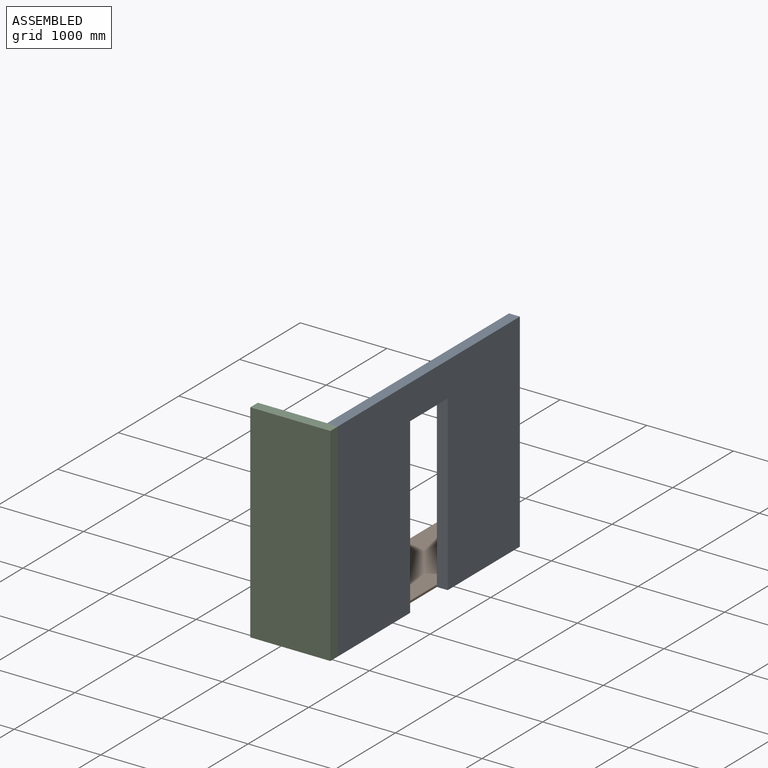
[diagram: assembled view]
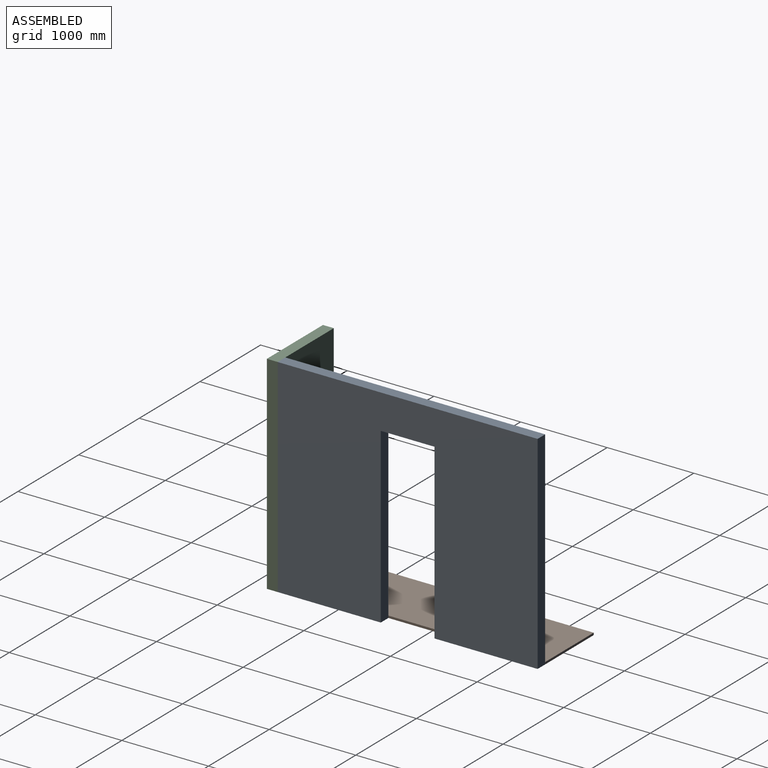
[diagram: assembled view, second angle]
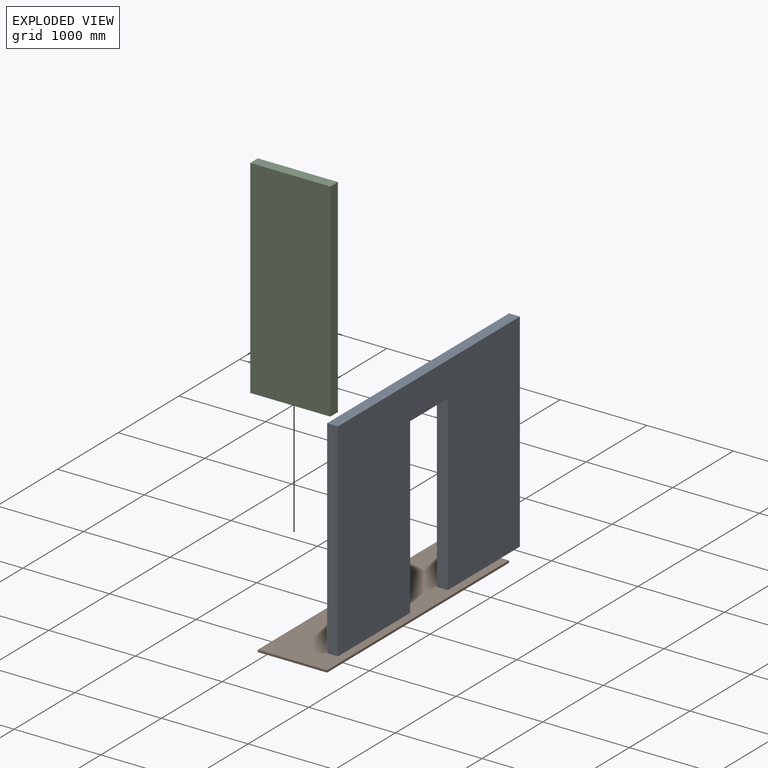
[diagram: exploded view]
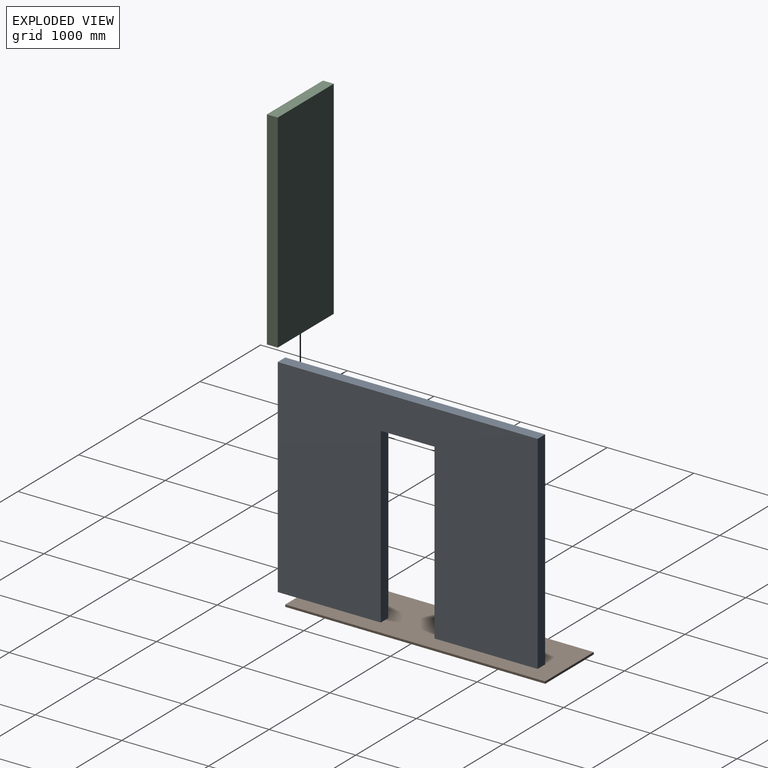
[diagram: exploded view, second angle]
ASSEMBLY  parts=3 mates=2
PART A: 10 faces, bbox 3000x125x2400 mm
  f0: plane 2000x125mm, normal (-1,0,0), area 250000mm2, adj f1,f7,f8,f9
  f1: plane 1190x125mm, normal (0,0,-1), area 148750mm2, adj f0,f2,f8,f9
  f2: plane 2400x125mm, normal (1,0,0), area 300000mm2, adj f1,f3,f8,f9
  f3: plane 3000x125mm, normal (0,0,1), area 375000mm2, adj f2,f4,f8,f9
  f4: plane 2400x125mm, normal (-1,0,0), area 300000mm2, adj f3,f5,f8,f9
  f5: plane 1190x125mm, normal (0,0,-1), area 148750mm2, adj f4,f6,f8,f9
  f6: plane 2000x125mm, normal (1,0,0), area 250000mm2, adj f5,f7,f8,f9
  f7: plane 620x125mm, normal (0,0,-1), area 77500mm2, adj f0,f6,f8,f9
  f8: plane 3000x2400mm, normal (0,-1,0), area 5960000mm2, adj f0,f1,f2,f3,f4,f5,f6,f7
  f9: plane 3000x2400mm, normal (0,1,0), area 5960000mm2, adj f0,f1,f2,f3,f4,f5,f6,f7
PART B: 6 faces, bbox 800x3000x25 mm
  f0: plane 3000x25mm, normal (1,0,0), area 75000mm2, adj f1,f3,f4,f5
  f1: plane 800x25mm, normal (0,1,0), area 20000mm2, adj f0,f2,f4,f5
  f2: plane 3000x25mm, normal (-1,0,0), area 75000mm2, adj f1,f3,f4,f5
  f3: plane 800x25mm, normal (0,-1,0), area 20000mm2, adj f0,f2,f4,f5
  f4: plane 3000x800mm, normal (0,0,1), area 2400000mm2, adj f0,f1,f2,f3
  f5: plane 3000x800mm, normal (0,0,-1), area 2400000mm2, adj f0,f1,f2,f3
PART C: 6 faces, bbox 125x925x2400 mm
  f0: plane 2400x125mm, normal (0,-1,0), area 300000mm2, adj f1,f3,f4,f5
  f1: plane 925x125mm, normal (0,0,-1), area 115625mm2, adj f0,f2,f4,f5
  f2: plane 2400x125mm, normal (0,1,0), area 300000mm2, adj f1,f3,f4,f5
  f3: plane 925x125mm, normal (0,0,1), area 115625mm2, adj f0,f2,f4,f5
  f4: plane 2400x925mm, normal (1,0,0), area 2220000mm2, adj f0,f1,f2,f3
  f5: plane 2400x925mm, normal (-1,0,0), area 2220000mm2, adj f0,f1,f2,f3
PLACE A rot(axis=(0,0,1),90deg) t=(772.7,-1372.87,46.58)mm
PLACE B t=(772.7,1627.13,46.58)mm
PLACE C rot(axis=(0,0,1),90deg) t=(897.7,-1497.87,46.58)mm
MATE fastened A.f1 <-> B.f5  axis (0,0,1) through (772.7,1627.13,46.58)mm
MATE fastened C.f1 <-> A.f5  axis (0,0,1) through (897.7,-1372.87,46.58)mm
